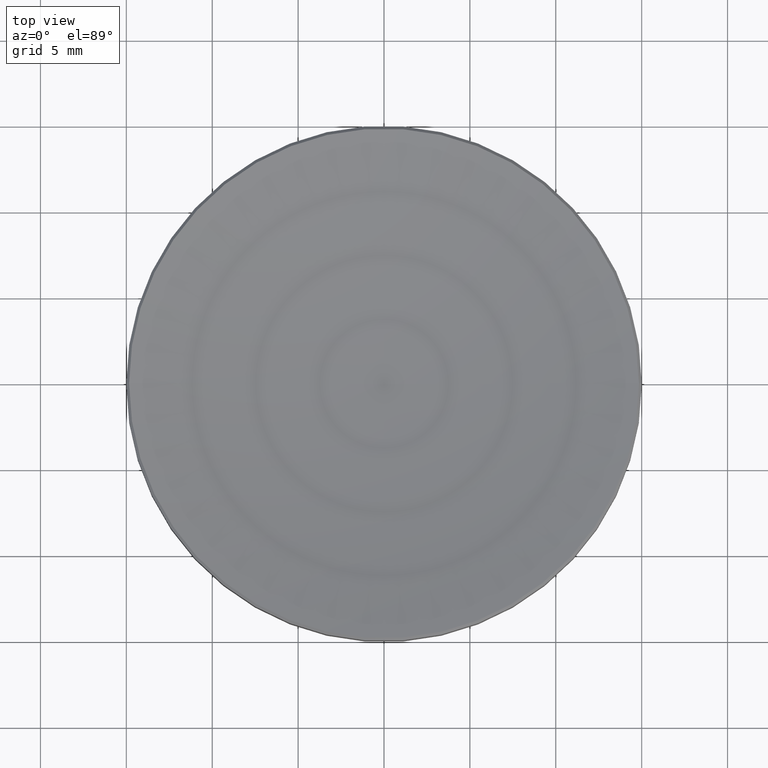
[diagram: clean part render]
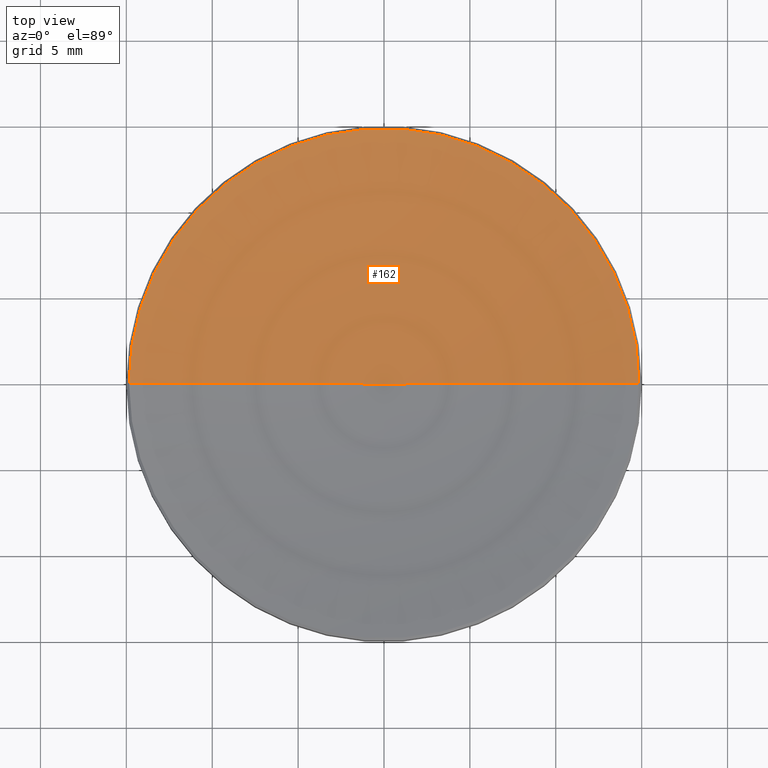
[diagram: same view with one face highlighted and labeled with its STEP entity id]
A machine part, top view. The second image highlights one B-rep face of the part: STEP entity #162.
In plain terms, the highlighted toroidal blend (fillet) surface has major radius 0.0125 mm and minor (blend) radius 64.55 mm.
Its self-contained STEP definition (entity closure, byte-faithful):
#23 = CIRCLE ( 'NONE', #49, 64.54999999999999716 ) ;
#29 = DIRECTION ( 'NONE',  ( 0.000000000000000000, -1.000000000000000000, 0.000000000000000000 ) ) ;
#30 = EDGE_LOOP ( 'NONE', ( #264, #174, #237 ) ) ;
#32 = CARTESIAN_POINT ( 'NONE',  ( 0.000000000000000000, 0.000000000000000000, 2.500000000000000000 ) ) ;
#35 = CIRCLE ( 'NONE', #61, 64.54999999999999716 ) ;
#38 = DIRECTION ( 'NONE',  ( -0.000000000000000000, -0.000000000000000000, 1.000000000000000000 ) ) ;
#47 = VERTEX_POINT ( 'NONE', #32 ) ;
#49 = AXIS2_PLACEMENT_3D ( 'NONE', #261, #29, #236 ) ;
#59 = CARTESIAN_POINT ( 'NONE',  ( -14.83841890857158852, 1.817182222078975933E-15, 4.231581091428418873 ) ) ;
#61 = AXIS2_PLACEMENT_3D ( 'NONE', #76, #164, #139 ) ;
#76 = CARTESIAN_POINT ( 'NONE',  ( 0.01246985787228815923, -1.527117152912011826E-18, 67.04999879552784137 ) ) ;
#77 = AXIS2_PLACEMENT_3D ( 'NONE', #151, #98, #96 ) ;
#80 = DIRECTION ( 'NONE',  ( 1.000000000000000000, 0.000000000000000000, 0.000000000000000000 ) ) ;
#87 = EDGE_CURVE ( 'NONE', #251, #163, #119, .T. ) ;
#96 = DIRECTION ( 'NONE',  ( 1.000000000000000000, 0.000000000000000000, 0.000000000000000000 ) ) ;
#98 = DIRECTION ( 'NONE',  ( -0.000000000000000000, -0.000000000000000000, 1.000000000000000000 ) ) ;
#117 = CARTESIAN_POINT ( 'NONE',  ( 14.83841890857158852, 0.000000000000000000, 4.231581091428418873 ) ) ;
#119 = CIRCLE ( 'NONE', #266, 14.83841890857160806 ) ;
#129 = CARTESIAN_POINT ( 'NONE',  ( 0.000000000000000000, 0.000000000000000000, 4.231581091428418873 ) ) ;
#139 = DIRECTION ( 'NONE',  ( -1.000000000000000000, 1.224646799147352961E-16, 0.000000000000000000 ) ) ;
#151 = CARTESIAN_POINT ( 'NONE',  ( 0.000000000000000000, 0.000000000000000000, 67.04999879552784137 ) ) ;
#162 = ADVANCED_FACE ( 'NONE', ( #183 ), #210, .F. ) ;
#163 = VERTEX_POINT ( 'NONE', #59 ) ;
#164 = DIRECTION ( 'NONE',  ( 1.224646799147353207E-16, 1.000000000000000000, 0.000000000000000000 ) ) ;
#165 = EDGE_CURVE ( 'NONE', #47, #163, #35, .T. ) ;
#174 = ORIENTED_EDGE ( 'NONE', *, *, #186, .T. ) ;
#183 = FACE_OUTER_BOUND ( 'NONE', #30, .T. ) ;
#186 = EDGE_CURVE ( 'NONE', #47, #251, #23, .T. ) ;
#210 = TOROIDAL_SURFACE ( 'NONE', #77, -0.01246985787228815923, 64.54999999999999716 ) ;
#236 = DIRECTION ( 'NONE',  ( 0.000000000000000000, 0.000000000000000000, -1.000000000000000000 ) ) ;
#237 = ORIENTED_EDGE ( 'NONE', *, *, #87, .T. ) ;
#251 = VERTEX_POINT ( 'NONE', #117 ) ;
#261 = CARTESIAN_POINT ( 'NONE',  ( -0.01246985787228815923, 0.000000000000000000, 67.04999879552784137 ) ) ;
#264 = ORIENTED_EDGE ( 'NONE', *, *, #165, .F. ) ;
#266 = AXIS2_PLACEMENT_3D ( 'NONE', #129, #38, #80 ) ;